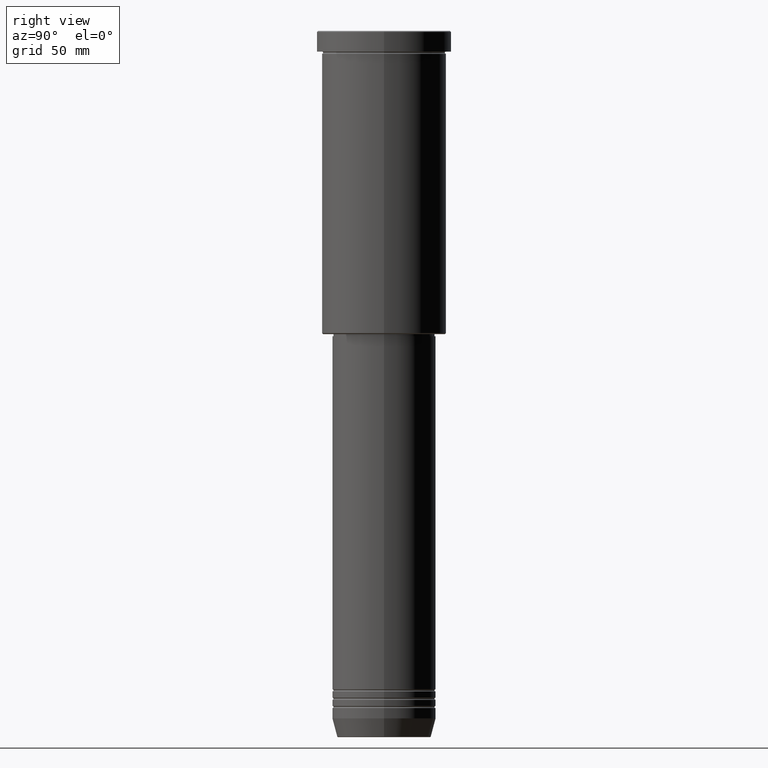
[diagram: clean part render]
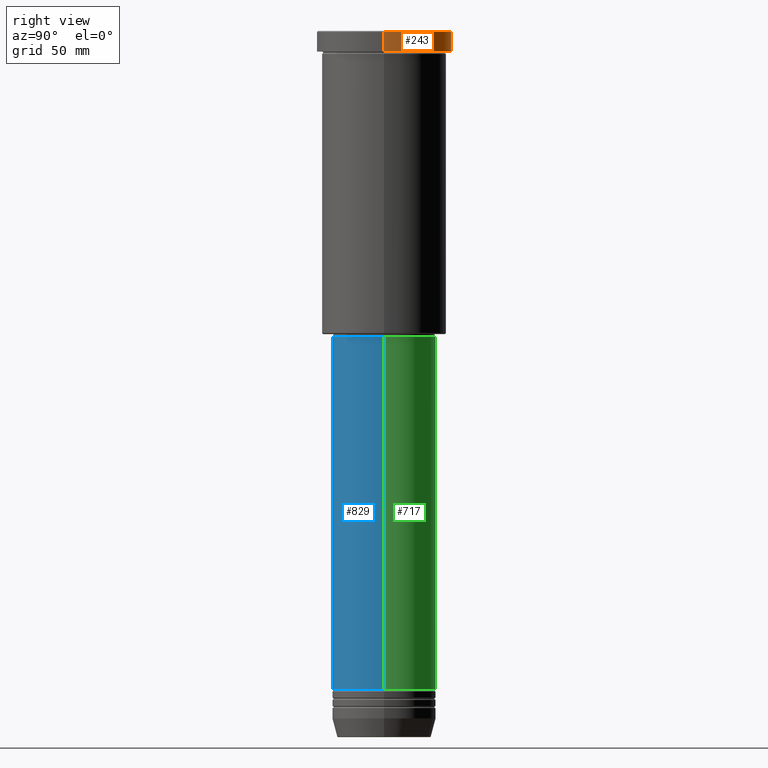
[diagram: same view with three faces highlighted in distinct colors, each labeled with its STEP entity id]
A machine part, right view with three faces highlighted in distinct colors.
Their STEP definitions:

[orange] entity #243 — the highlighted cylindrical surface (partial cylindrical patch) has radius 32.5 mm, axis along (-0, -0, 1).
#6 = CARTESIAN_POINT ( 'NONE',  ( -32.50000000000000000, 3.980102097228898626E-15, -0.5000000000000559552 ) ) ;
#24 = ORIENTED_EDGE ( 'NONE', *, *, #966, .T. ) ;
#25 = AXIS2_PLACEMENT_3D ( 'NONE', #155, #520, #354 ) ;
#69 = CARTESIAN_POINT ( 'NONE',  ( -32.50000000000000000, 3.980102097228898626E-15, 0.000000000000000000 ) ) ;
#79 = DIRECTION ( 'NONE',  ( 1.000000000000000000, 0.000000000000000000, 0.000000000000000000 ) ) ;
#92 = CIRCLE ( 'NONE', #934, 32.50000000000000000 ) ;
#106 = VERTEX_POINT ( 'NONE', #753 ) ;
#155 = CARTESIAN_POINT ( 'NONE',  ( 0.000000000000000000, 0.000000000000000000, 0.000000000000000000 ) ) ;
#176 = VECTOR ( 'NONE', #268, 1000.000000000000000 ) ;
#215 = AXIS2_PLACEMENT_3D ( 'NONE', #825, #613, #79 ) ;
#240 = CYLINDRICAL_SURFACE ( 'NONE', #25, 32.50000000000000000 ) ;
#243 = ADVANCED_FACE ( 'NONE', ( #1063 ), #240, .T. ) ;
#263 = VECTOR ( 'NONE', #272, 1000.000000000000000 ) ;
#268 = DIRECTION ( 'NONE',  ( -0.000000000000000000, -0.000000000000000000, 1.000000000000000000 ) ) ;
#272 = DIRECTION ( 'NONE',  ( -0.000000000000000000, -0.000000000000000000, 1.000000000000000000 ) ) ;
#278 = CARTESIAN_POINT ( 'NONE',  ( 0.000000000000000000, 0.000000000000000000, -0.5000000000000559552 ) ) ;
#298 = EDGE_LOOP ( 'NONE', ( #24, #738, #378, #544 ) ) ;
#354 = DIRECTION ( 'NONE',  ( 1.000000000000000000, 0.000000000000000000, 0.000000000000000000 ) ) ;
#378 = ORIENTED_EDGE ( 'NONE', *, *, #470, .T. ) ;
#461 = EDGE_CURVE ( 'NONE', #505, #769, #519, .T. ) ;
#470 = EDGE_CURVE ( 'NONE', #769, #106, #92, .T. ) ;
#505 = VERTEX_POINT ( 'NONE', #820 ) ;
#519 = LINE ( 'NONE', #69, #263 ) ;
#520 = DIRECTION ( 'NONE',  ( -0.000000000000000000, -0.000000000000000000, 1.000000000000000000 ) ) ;
#544 = ORIENTED_EDGE ( 'NONE', *, *, #1124, .F. ) ;
#550 = LINE ( 'NONE', #1084, #176 ) ;
#613 = DIRECTION ( 'NONE',  ( -0.000000000000000000, -0.000000000000000000, 1.000000000000000000 ) ) ;
#632 = DIRECTION ( 'NONE',  ( 1.000000000000000000, 0.000000000000000000, 0.000000000000000000 ) ) ;
#738 = ORIENTED_EDGE ( 'NONE', *, *, #461, .T. ) ;
#753 = CARTESIAN_POINT ( 'NONE',  ( 32.50000000000000000, 0.000000000000000000, -0.5000000000000559552 ) ) ;
#756 = CARTESIAN_POINT ( 'NONE',  ( 32.50000000000000000, 0.000000000000000000, -9.999999999999992895 ) ) ;
#769 = VERTEX_POINT ( 'NONE', #6 ) ;
#820 = CARTESIAN_POINT ( 'NONE',  ( -32.50000000000000000, 3.980102097228898626E-15, -9.999999999999992895 ) ) ;
#825 = CARTESIAN_POINT ( 'NONE',  ( 0.000000000000000000, 0.000000000000000000, -9.999999999999992895 ) ) ;
#873 = CIRCLE ( 'NONE', #215, 32.50000000000000000 ) ;
#934 = AXIS2_PLACEMENT_3D ( 'NONE', #278, #1007, #632 ) ;
#966 = EDGE_CURVE ( 'NONE', #1006, #505, #873, .T. ) ;
#1006 = VERTEX_POINT ( 'NONE', #756 ) ;
#1007 = DIRECTION ( 'NONE',  ( 0.000000000000000000, 0.000000000000000000, -1.000000000000000000 ) ) ;
#1063 = FACE_OUTER_BOUND ( 'NONE', #298, .T. ) ;
#1084 = CARTESIAN_POINT ( 'NONE',  ( 32.50000000000000000, 0.000000000000000000, 0.000000000000000000 ) ) ;
#1124 = EDGE_CURVE ( 'NONE', #1006, #106, #550, .T. ) ;

[blue] entity #829 — the highlighted cylindrical surface (partial cylindrical patch) has radius 25 mm, axis along (-0, -0, 1).
#18 = CARTESIAN_POINT ( 'NONE',  ( -25.00000000000001066, 3.061616997868384226E-15, -146.9999999999999147 ) ) ;
#19 = CARTESIAN_POINT ( 'NONE',  ( 0.000000000000000000, 0.000000000000000000, -317.0000000000000568 ) ) ;
#29 = CARTESIAN_POINT ( 'NONE',  ( 25.00000000000000000, 0.000000000000000000, -317.0000000000000568 ) ) ;
#84 = CARTESIAN_POINT ( 'NONE',  ( 25.00000000000000355, 0.000000000000000000, 0.000000000000000000 ) ) ;
#118 = CIRCLE ( 'NONE', #884, 25.00000000000000711 ) ;
#122 = DIRECTION ( 'NONE',  ( -0.000000000000000000, -0.000000000000000000, 1.000000000000000000 ) ) ;
#126 = EDGE_CURVE ( 'NONE', #269, #393, #118, .T. ) ;
#158 = DIRECTION ( 'NONE',  ( -0.000000000000000000, -0.000000000000000000, 1.000000000000000000 ) ) ;
#184 = DIRECTION ( 'NONE',  ( -0.000000000000000000, -0.000000000000000000, 1.000000000000000000 ) ) ;
#228 = CARTESIAN_POINT ( 'NONE',  ( 25.00000000000000711, 0.000000000000000000, -146.9999999999999147 ) ) ;
#252 = DIRECTION ( 'NONE',  ( -0.000000000000000000, -0.000000000000000000, 1.000000000000000000 ) ) ;
#264 = FACE_OUTER_BOUND ( 'NONE', #326, .T. ) ;
#269 = VERTEX_POINT ( 'NONE', #18 ) ;
#270 = CARTESIAN_POINT ( 'NONE',  ( 0.000000000000000000, 0.000000000000000000, 0.000000000000000000 ) ) ;
#306 = AXIS2_PLACEMENT_3D ( 'NONE', #19, #122, #652 ) ;
#308 = VECTOR ( 'NONE', #158, 1000.000000000000000 ) ;
#326 = EDGE_LOOP ( 'NONE', ( #601, #727, #1110, #1169 ) ) ;
#346 = AXIS2_PLACEMENT_3D ( 'NONE', #270, #184, #910 ) ;
#374 = EDGE_CURVE ( 'NONE', #998, #1158, #819, .T. ) ;
#393 = VERTEX_POINT ( 'NONE', #228 ) ;
#438 = DIRECTION ( 'NONE',  ( 1.000000000000000000, 0.000000000000000000, 0.000000000000000000 ) ) ;
#442 = CARTESIAN_POINT ( 'NONE',  ( 0.000000000000000000, 0.000000000000000000, -146.9999999999999147 ) ) ;
#484 = CARTESIAN_POINT ( 'NONE',  ( -25.00000000000000000, 3.061616997868383437E-15, -317.0000000000000568 ) ) ;
#601 = ORIENTED_EDGE ( 'NONE', *, *, #948, .F. ) ;
#652 = DIRECTION ( 'NONE',  ( 1.000000000000000000, 0.000000000000000000, 0.000000000000000000 ) ) ;
#724 = CYLINDRICAL_SURFACE ( 'NONE', #346, 25.00000000000000355 ) ;
#725 = CARTESIAN_POINT ( 'NONE',  ( -25.00000000000000355, 3.061616997868383437E-15, 0.000000000000000000 ) ) ;
#727 = ORIENTED_EDGE ( 'NONE', *, *, #374, .T. ) ;
#809 = LINE ( 'NONE', #84, #308 ) ;
#819 = CIRCLE ( 'NONE', #306, 25.00000000000000000 ) ;
#829 = ADVANCED_FACE ( 'NONE', ( #264 ), #724, .T. ) ;
#884 = AXIS2_PLACEMENT_3D ( 'NONE', #442, #1078, #438 ) ;
#904 = EDGE_CURVE ( 'NONE', #1158, #393, #809, .T. ) ;
#910 = DIRECTION ( 'NONE',  ( 1.000000000000000000, 0.000000000000000000, 0.000000000000000000 ) ) ;
#948 = EDGE_CURVE ( 'NONE', #998, #269, #1073, .T. ) ;
#998 = VERTEX_POINT ( 'NONE', #484 ) ;
#1073 = LINE ( 'NONE', #725, #1129 ) ;
#1078 = DIRECTION ( 'NONE',  ( -0.000000000000000000, -0.000000000000000000, 1.000000000000000000 ) ) ;
#1110 = ORIENTED_EDGE ( 'NONE', *, *, #904, .T. ) ;
#1129 = VECTOR ( 'NONE', #252, 1000.000000000000000 ) ;
#1158 = VERTEX_POINT ( 'NONE', #29 ) ;
#1169 = ORIENTED_EDGE ( 'NONE', *, *, #126, .F. ) ;

[green] entity #717 — the highlighted cylindrical surface (partial cylindrical patch) has radius 25 mm, axis along (-0, -0, 1).
#18 = CARTESIAN_POINT ( 'NONE',  ( -25.00000000000001066, 3.061616997868384226E-15, -146.9999999999999147 ) ) ;
#29 = CARTESIAN_POINT ( 'NONE',  ( 25.00000000000000000, 0.000000000000000000, -317.0000000000000568 ) ) ;
#71 = EDGE_CURVE ( 'NONE', #1158, #998, #235, .T. ) ;
#84 = CARTESIAN_POINT ( 'NONE',  ( 25.00000000000000355, 0.000000000000000000, 0.000000000000000000 ) ) ;
#138 = DIRECTION ( 'NONE',  ( -0.000000000000000000, -0.000000000000000000, 1.000000000000000000 ) ) ;
#158 = DIRECTION ( 'NONE',  ( -0.000000000000000000, -0.000000000000000000, 1.000000000000000000 ) ) ;
#214 = CIRCLE ( 'NONE', #363, 25.00000000000000711 ) ;
#228 = CARTESIAN_POINT ( 'NONE',  ( 25.00000000000000711, 0.000000000000000000, -146.9999999999999147 ) ) ;
#235 = CIRCLE ( 'NONE', #718, 25.00000000000000000 ) ;
#241 = ORIENTED_EDGE ( 'NONE', *, *, #877, .F. ) ;
#252 = DIRECTION ( 'NONE',  ( -0.000000000000000000, -0.000000000000000000, 1.000000000000000000 ) ) ;
#254 = DIRECTION ( 'NONE',  ( 1.000000000000000000, 0.000000000000000000, 0.000000000000000000 ) ) ;
#259 = CARTESIAN_POINT ( 'NONE',  ( 0.000000000000000000, 0.000000000000000000, -317.0000000000000568 ) ) ;
#269 = VERTEX_POINT ( 'NONE', #18 ) ;
#271 = ORIENTED_EDGE ( 'NONE', *, *, #904, .F. ) ;
#308 = VECTOR ( 'NONE', #158, 1000.000000000000000 ) ;
#341 = DIRECTION ( 'NONE',  ( -0.000000000000000000, -0.000000000000000000, 1.000000000000000000 ) ) ;
#363 = AXIS2_PLACEMENT_3D ( 'NONE', #951, #138, #1127 ) ;
#393 = VERTEX_POINT ( 'NONE', #228 ) ;
#415 = AXIS2_PLACEMENT_3D ( 'NONE', #612, #341, #525 ) ;
#434 = FACE_OUTER_BOUND ( 'NONE', #888, .T. ) ;
#484 = CARTESIAN_POINT ( 'NONE',  ( -25.00000000000000000, 3.061616997868383437E-15, -317.0000000000000568 ) ) ;
#525 = DIRECTION ( 'NONE',  ( 1.000000000000000000, 0.000000000000000000, 0.000000000000000000 ) ) ;
#608 = CYLINDRICAL_SURFACE ( 'NONE', #415, 25.00000000000000355 ) ;
#612 = CARTESIAN_POINT ( 'NONE',  ( 0.000000000000000000, 0.000000000000000000, 0.000000000000000000 ) ) ;
#659 = ORIENTED_EDGE ( 'NONE', *, *, #71, .T. ) ;
#717 = ADVANCED_FACE ( 'NONE', ( #434 ), #608, .T. ) ;
#718 = AXIS2_PLACEMENT_3D ( 'NONE', #259, #1074, #254 ) ;
#725 = CARTESIAN_POINT ( 'NONE',  ( -25.00000000000000355, 3.061616997868383437E-15, 0.000000000000000000 ) ) ;
#809 = LINE ( 'NONE', #84, #308 ) ;
#877 = EDGE_CURVE ( 'NONE', #393, #269, #214, .T. ) ;
#888 = EDGE_LOOP ( 'NONE', ( #659, #1098, #241, #271 ) ) ;
#904 = EDGE_CURVE ( 'NONE', #1158, #393, #809, .T. ) ;
#948 = EDGE_CURVE ( 'NONE', #998, #269, #1073, .T. ) ;
#951 = CARTESIAN_POINT ( 'NONE',  ( 0.000000000000000000, 0.000000000000000000, -146.9999999999999147 ) ) ;
#998 = VERTEX_POINT ( 'NONE', #484 ) ;
#1073 = LINE ( 'NONE', #725, #1129 ) ;
#1074 = DIRECTION ( 'NONE',  ( -0.000000000000000000, -0.000000000000000000, 1.000000000000000000 ) ) ;
#1098 = ORIENTED_EDGE ( 'NONE', *, *, #948, .T. ) ;
#1127 = DIRECTION ( 'NONE',  ( 1.000000000000000000, 0.000000000000000000, 0.000000000000000000 ) ) ;
#1129 = VECTOR ( 'NONE', #252, 1000.000000000000000 ) ;
#1158 = VERTEX_POINT ( 'NONE', #29 ) ;